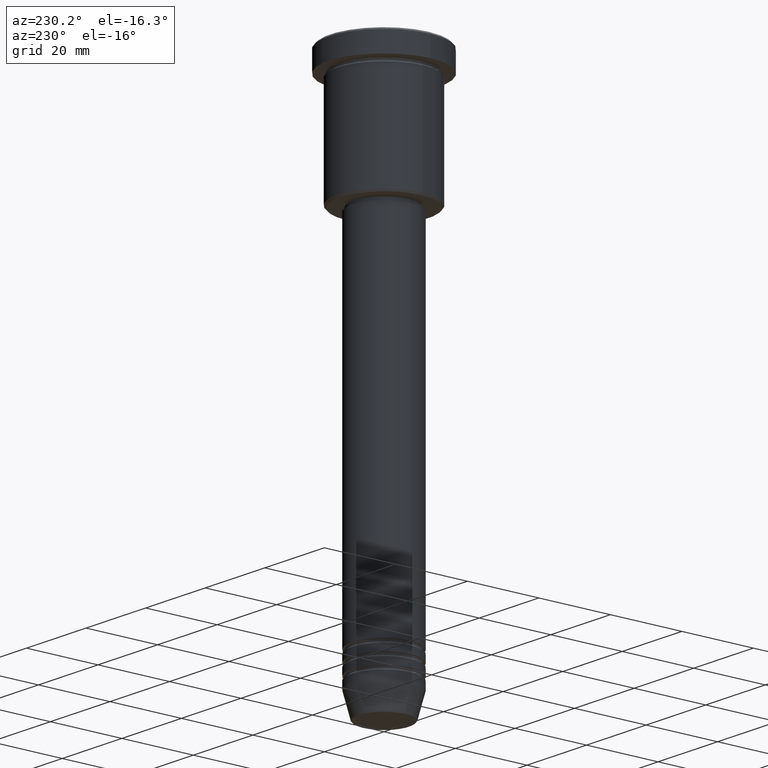
[diagram: clean part render]
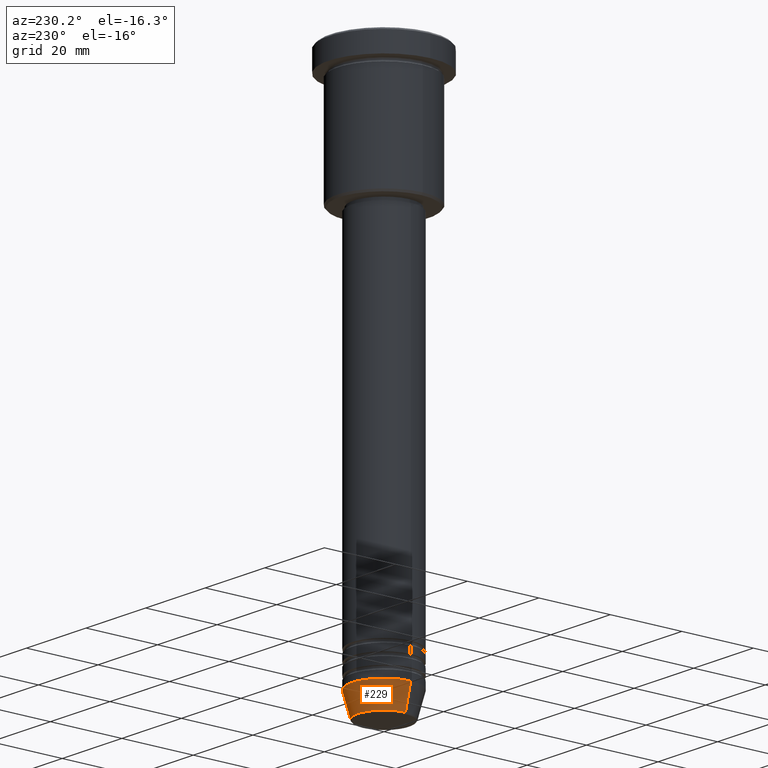
[diagram: same view with one face highlighted and labeled with its STEP entity id]
A machine part, auxiliary view. The second image highlights one B-rep face of the part: STEP entity #229.
In plain terms, the highlighted conical surface has half-angle 15 deg.
Its self-contained STEP definition (entity closure, byte-faithful):
#13 = EDGE_CURVE ( 'NONE', #238, #325, #928, .T. ) ;
#33 = DIRECTION ( 'NONE',  ( -0.000000000000000000, -0.000000000000000000, 1.000000000000000000 ) ) ;
#64 = CARTESIAN_POINT ( 'NONE',  ( -9.000000000000000000, 1.102182119232617714E-15, -144.0000000000000284 ) ) ;
#76 = CONICAL_SURFACE ( 'NONE', #1113, 9.000000000000000000, 0.2617993877991500740 ) ;
#77 = VECTOR ( 'NONE', #958, 1000.000000000000000 ) ;
#106 = DIRECTION ( 'NONE',  ( 0.2588190451025213501, 0.000000000000000000, 0.9659258262890680902 ) ) ;
#165 = VERTEX_POINT ( 'NONE', #396 ) ;
#229 = ADVANCED_FACE ( 'NONE', ( #540 ), #76, .T. ) ;
#238 = VERTEX_POINT ( 'NONE', #967 ) ;
#243 = CARTESIAN_POINT ( 'NONE',  ( 0.000000000000000000, 0.000000000000000000, -150.6294095225512990 ) ) ;
#286 = ORIENTED_EDGE ( 'NONE', *, *, #632, .T. ) ;
#316 = AXIS2_PLACEMENT_3D ( 'NONE', #434, #624, #998 ) ;
#325 = VERTEX_POINT ( 'NONE', #64 ) ;
#336 = DIRECTION ( 'NONE',  ( 1.000000000000000000, 0.000000000000000000, 0.000000000000000000 ) ) ;
#396 = CARTESIAN_POINT ( 'NONE',  ( -7.223655072137189492, 9.934123627281765110E-16, -150.6294095225512990 ) ) ;
#425 = CARTESIAN_POINT ( 'NONE',  ( 0.000000000000000000, 0.000000000000000000, -144.0000000000000284 ) ) ;
#434 = CARTESIAN_POINT ( 'NONE',  ( 0.000000000000000000, 0.000000000000000000, -144.0000000000000284 ) ) ;
#440 = ORIENTED_EDGE ( 'NONE', *, *, #13, .F. ) ;
#472 = AXIS2_PLACEMENT_3D ( 'NONE', #243, #33, #751 ) ;
#521 = EDGE_LOOP ( 'NONE', ( #1169, #286, #440, #783 ) ) ;
#533 = CARTESIAN_POINT ( 'NONE',  ( 7.223655072137188604, 0.000000000000000000, -150.6294095225512990 ) ) ;
#540 = FACE_OUTER_BOUND ( 'NONE', #521, .T. ) ;
#550 = LINE ( 'NONE', #915, #752 ) ;
#588 = CARTESIAN_POINT ( 'NONE',  ( -9.000000000000000000, 1.102182119232617714E-15, -144.0000000000000284 ) ) ;
#624 = DIRECTION ( 'NONE',  ( -0.000000000000000000, -0.000000000000000000, 1.000000000000000000 ) ) ;
#632 = EDGE_CURVE ( 'NONE', #165, #325, #1048, .T. ) ;
#706 = VERTEX_POINT ( 'NONE', #533 ) ;
#751 = DIRECTION ( 'NONE',  ( 1.000000000000000000, 0.000000000000000000, 0.000000000000000000 ) ) ;
#752 = VECTOR ( 'NONE', #106, 1000.000000000000000 ) ;
#777 = CIRCLE ( 'NONE', #472, 7.223655072137188604 ) ;
#783 = ORIENTED_EDGE ( 'NONE', *, *, #1108, .F. ) ;
#899 = EDGE_CURVE ( 'NONE', #706, #165, #777, .T. ) ;
#915 = CARTESIAN_POINT ( 'NONE',  ( 9.000000000000000000, 0.000000000000000000, -144.0000000000000284 ) ) ;
#928 = CIRCLE ( 'NONE', #316, 9.000000000000000000 ) ;
#958 = DIRECTION ( 'NONE',  ( -0.2588190451025213501, 3.169619151431772337E-17, 0.9659258262890680902 ) ) ;
#967 = CARTESIAN_POINT ( 'NONE',  ( 9.000000000000000000, 0.000000000000000000, -144.0000000000000284 ) ) ;
#998 = DIRECTION ( 'NONE',  ( 1.000000000000000000, 0.000000000000000000, 0.000000000000000000 ) ) ;
#1048 = LINE ( 'NONE', #588, #77 ) ;
#1068 = DIRECTION ( 'NONE',  ( -0.000000000000000000, -0.000000000000000000, 1.000000000000000000 ) ) ;
#1108 = EDGE_CURVE ( 'NONE', #706, #238, #550, .T. ) ;
#1113 = AXIS2_PLACEMENT_3D ( 'NONE', #425, #1068, #336 ) ;
#1169 = ORIENTED_EDGE ( 'NONE', *, *, #899, .T. ) ;